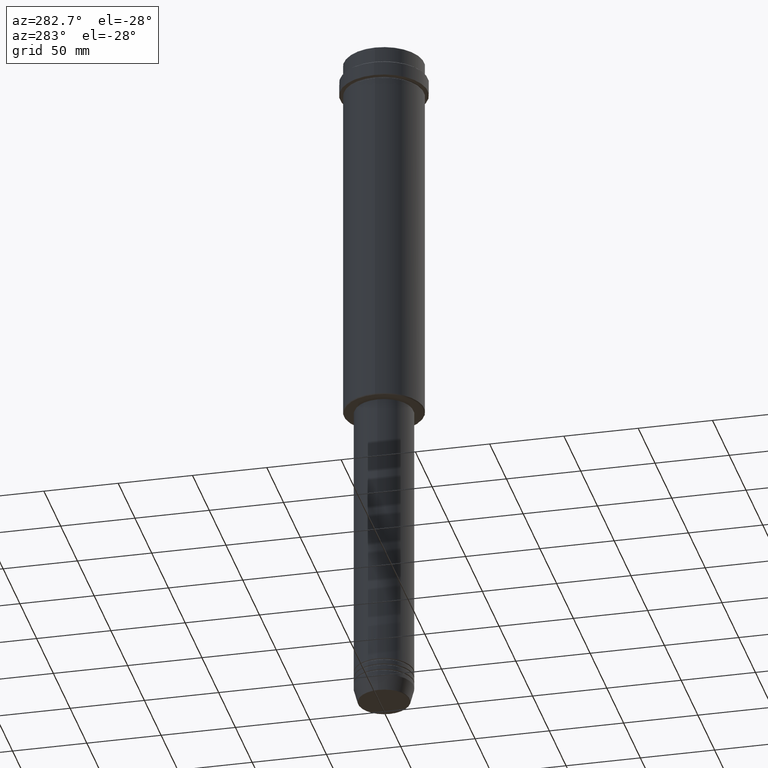
[diagram: clean part render]
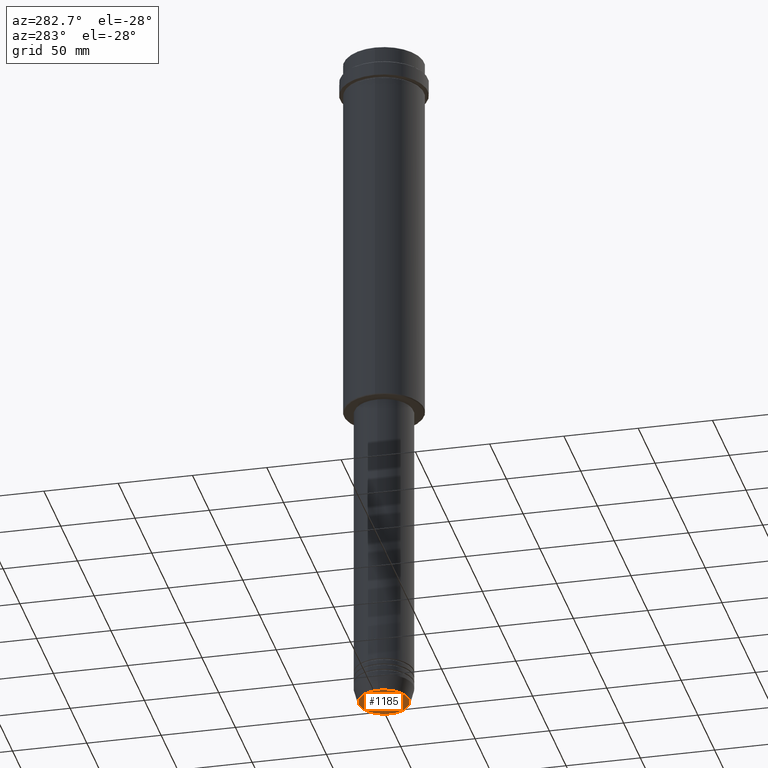
[diagram: same view with one face highlighted and labeled with its STEP entity id]
A machine part, auxiliary view. The second image highlights one B-rep face of the part: STEP entity #1185.
In plain terms, the highlighted planar face has unit normal (0, -0, 1).
Its self-contained STEP definition (entity closure, byte-faithful):
#145 = DIRECTION ( 'NONE',  ( 1.000000000000000000, 0.000000000000000000, 0.000000000000000000 ) ) ;
#173 = AXIS2_PLACEMENT_3D ( 'NONE', #1262, #822, #510 ) ;
#382 = VERTEX_POINT ( 'NONE', #968 ) ;
#500 = DIRECTION ( 'NONE',  ( 1.000000000000000000, 0.000000000000000000, 0.000000000000000000 ) ) ;
#506 = AXIS2_PLACEMENT_3D ( 'NONE', #575, #900, #145 ) ;
#510 = DIRECTION ( 'NONE',  ( 1.000000000000000000, 0.000000000000000000, 0.000000000000000000 ) ) ;
#555 = EDGE_CURVE ( 'NONE', #382, #895, #1098, .T. ) ;
#575 = CARTESIAN_POINT ( 'NONE',  ( 0.000000000000000000, 0.000000000000000000, -473.0000000000000000 ) ) ;
#606 = PLANE ( 'NONE',  #835 ) ;
#612 = FACE_OUTER_BOUND ( 'NONE', #1204, .T. ) ;
#637 = EDGE_CURVE ( 'NONE', #895, #382, #1126, .T. ) ;
#810 = ORIENTED_EDGE ( 'NONE', *, *, #555, .T. ) ;
#822 = DIRECTION ( 'NONE',  ( 0.000000000000000000, 0.000000000000000000, -1.000000000000000000 ) ) ;
#835 = AXIS2_PLACEMENT_3D ( 'NONE', #930, #935, #500 ) ;
#895 = VERTEX_POINT ( 'NONE', #967 ) ;
#900 = DIRECTION ( 'NONE',  ( 0.000000000000000000, 0.000000000000000000, -1.000000000000000000 ) ) ;
#930 = CARTESIAN_POINT ( 'NONE',  ( 0.000000000000000000, 0.000000000000000000, -473.0000000000000000 ) ) ;
#935 = DIRECTION ( 'NONE',  ( 0.000000000000000000, -0.000000000000000000, 1.000000000000000000 ) ) ;
#967 = CARTESIAN_POINT ( 'NONE',  ( -16.93684458169928675, 2.103738199747889592E-15, -473.0000000000000000 ) ) ;
#968 = CARTESIAN_POINT ( 'NONE',  ( 16.93684458169928675, 0.000000000000000000, -473.0000000000000000 ) ) ;
#1098 = CIRCLE ( 'NONE', #506, 16.93684458169928675 ) ;
#1126 = CIRCLE ( 'NONE', #173, 16.93684458169928675 ) ;
#1185 = ADVANCED_FACE ( 'NONE', ( #612 ), #606, .F. ) ;
#1204 = EDGE_LOOP ( 'NONE', ( #810, #1306 ) ) ;
#1262 = CARTESIAN_POINT ( 'NONE',  ( 0.000000000000000000, 0.000000000000000000, -473.0000000000000000 ) ) ;
#1306 = ORIENTED_EDGE ( 'NONE', *, *, #637, .T. ) ;